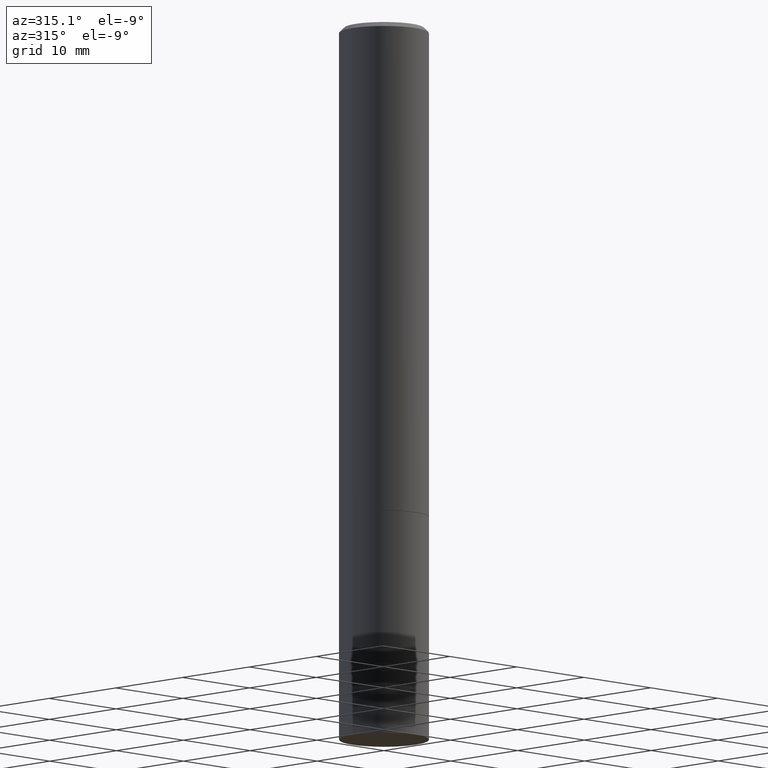
[diagram: clean part render]
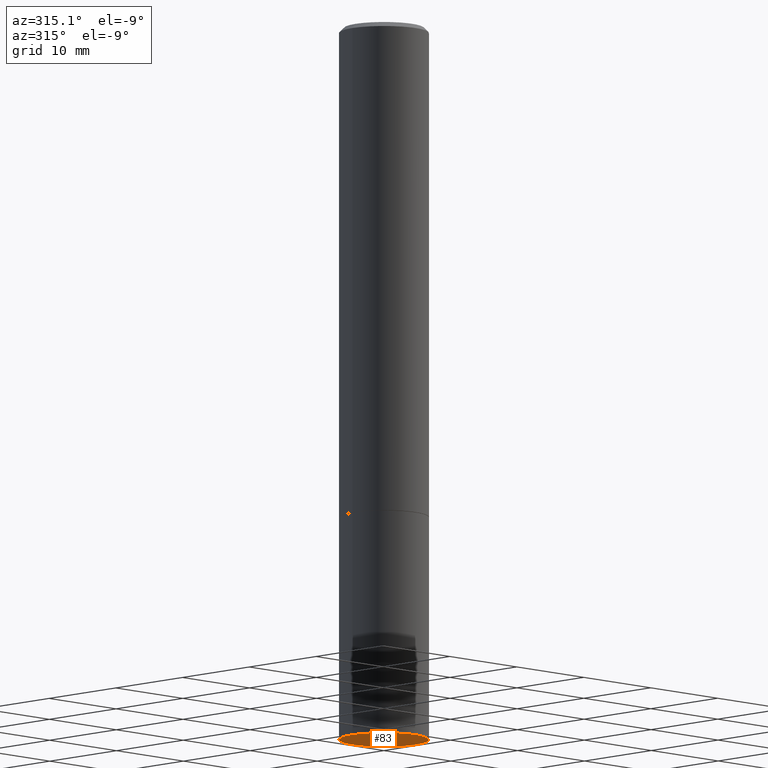
[diagram: same view with one face highlighted and labeled with its STEP entity id]
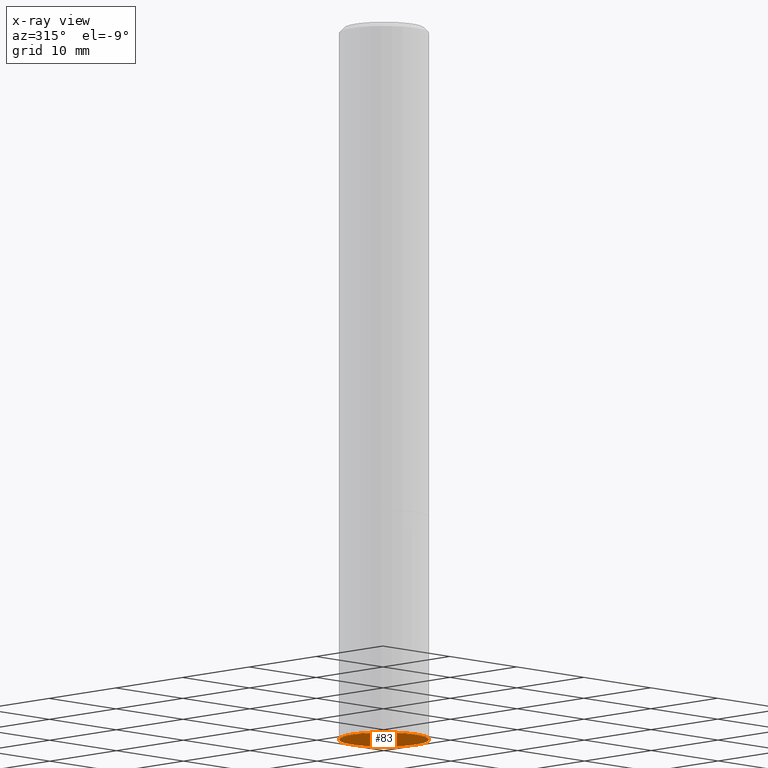
[diagram: x-ray of the same camera — body ghosted, the highlighted face saturated]
A machine part, auxiliary view. The second image highlights one B-rep face of the part: STEP entity #83.
The next image is the same camera in x-ray: the body ghosted, the highlighted face saturated — about 0% of this face is hidden behind the body in this view.
In plain terms, the highlighted planar face has unit normal (0, -0, -1).
Its self-contained STEP definition (entity closure, byte-faithful):
#8 = AXIS2_PLACEMENT_3D ( 'NONE', #145, #24, #151 ) ;
#24 = DIRECTION ( 'NONE',  ( 2.438088387897960049E-29, -3.491481338843145188E-15, -1.000000000000000000 ) ) ;
#54 = VERTEX_POINT ( 'NONE', #311 ) ;
#55 = CARTESIAN_POINT ( 'NONE',  ( -0.1875000000000000278, -7.505544509396524617E-15, -3.000000000000000444 ) ) ;
#81 = AXIS2_PLACEMENT_3D ( 'NONE', #146, #122, #180 ) ;
#83 = ADVANCED_FACE ( 'NONE', ( #231 ), #366, .T. ) ;
#107 = EDGE_CURVE ( 'NONE', #159, #54, #353, .T. ) ;
#122 = DIRECTION ( 'NONE',  ( -2.445468806185136597E-29, 3.491481338843145583E-15, 1.000000000000000000 ) ) ;
#145 = CARTESIAN_POINT ( 'NONE',  ( 1.309305502066248372E-15, 0.1874999999999895361, -3.000000000000000888 ) ) ;
#146 = CARTESIAN_POINT ( 'NONE',  ( 7.336406418555409790E-29, -1.047444401652943635E-14, -3.000000000000000444 ) ) ;
#150 = AXIS2_PLACEMENT_3D ( 'NONE', #316, #154, #266 ) ;
#151 = DIRECTION ( 'NONE',  ( -1.000000000000000000, 6.982962677686265922E-15, -4.876176775795935793E-29 ) ) ;
#154 = DIRECTION ( 'NONE',  ( -2.445468806185136597E-29, 3.491481338843145583E-15, 1.000000000000000000 ) ) ;
#156 = EDGE_LOOP ( 'NONE', ( #362, #191 ) ) ;
#159 = VERTEX_POINT ( 'NONE', #55 ) ;
#180 = DIRECTION ( 'NONE',  ( 1.000000000000000000, -6.982962677686261189E-15, 0.000000000000000000 ) ) ;
#191 = ORIENTED_EDGE ( 'NONE', *, *, #107, .F. ) ;
#231 = FACE_OUTER_BOUND ( 'NONE', #156, .T. ) ;
#266 = DIRECTION ( 'NONE',  ( 1.000000000000000000, -6.982962677686261189E-15, 0.000000000000000000 ) ) ;
#271 = EDGE_CURVE ( 'NONE', #54, #159, #321, .T. ) ;
#311 = CARTESIAN_POINT ( 'NONE',  ( 0.1875000000000000278, -1.178374951859561136E-14, -3.000000000000000444 ) ) ;
#316 = CARTESIAN_POINT ( 'NONE',  ( 7.336406418555409790E-29, -1.047444401652943635E-14, -3.000000000000000444 ) ) ;
#321 = CIRCLE ( 'NONE', #150, 0.1875000000000000278 ) ;
#353 = CIRCLE ( 'NONE', #81, 0.1875000000000000278 ) ;
#362 = ORIENTED_EDGE ( 'NONE', *, *, #271, .F. ) ;
#366 = PLANE ( 'NONE',  #8 ) ;